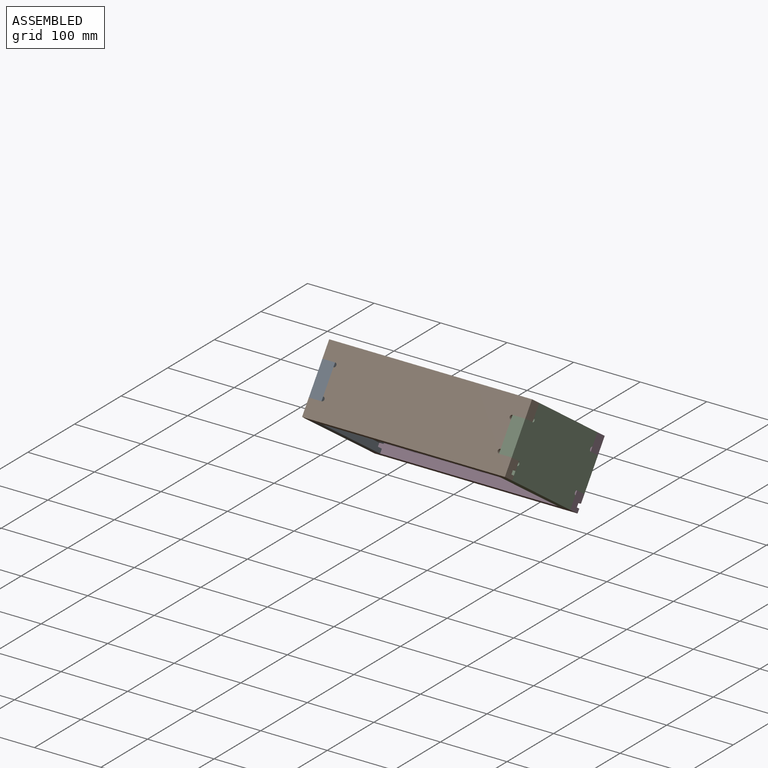
[diagram: assembled view]
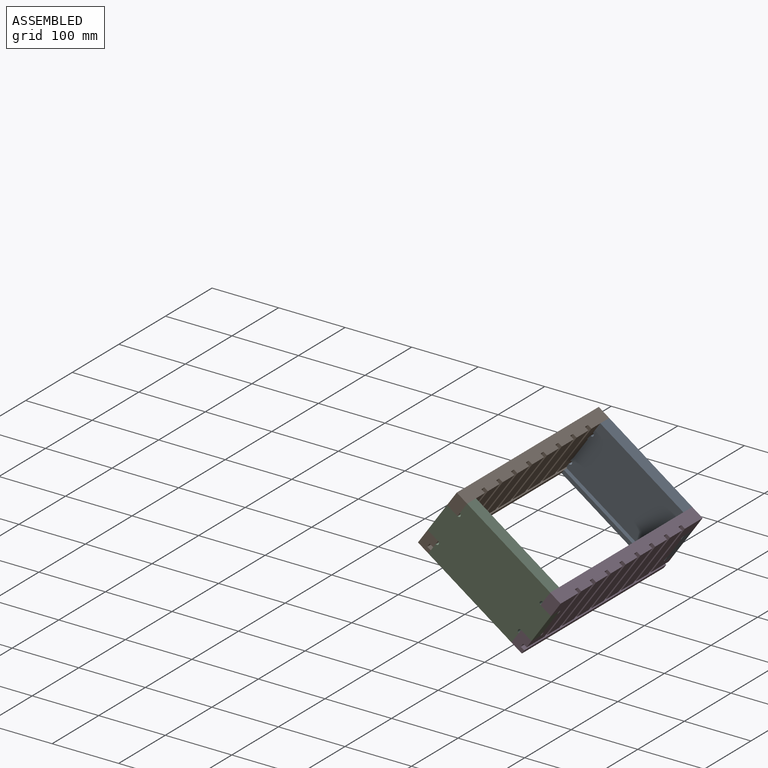
[diagram: assembled view, second angle]
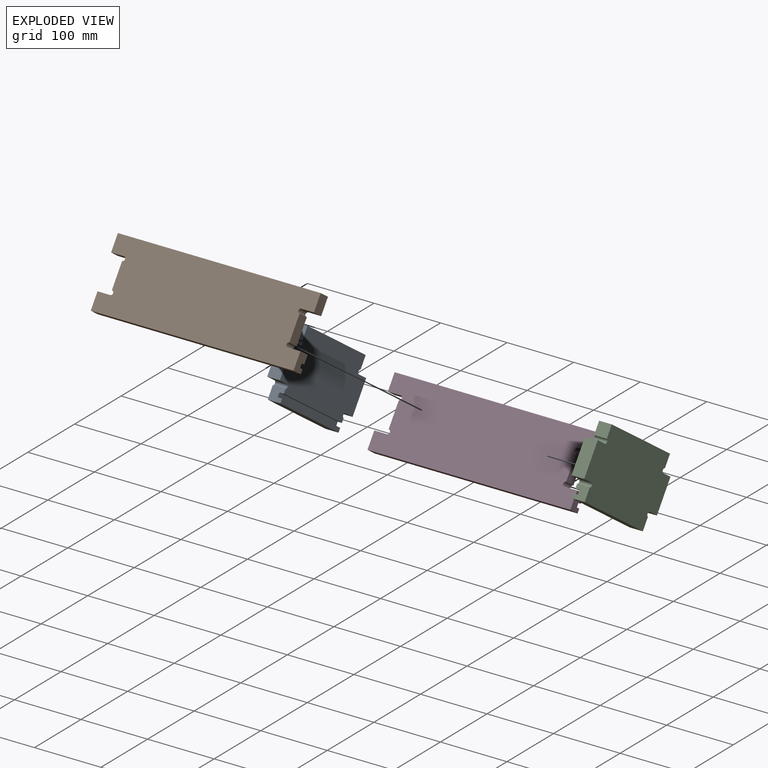
[diagram: exploded view]
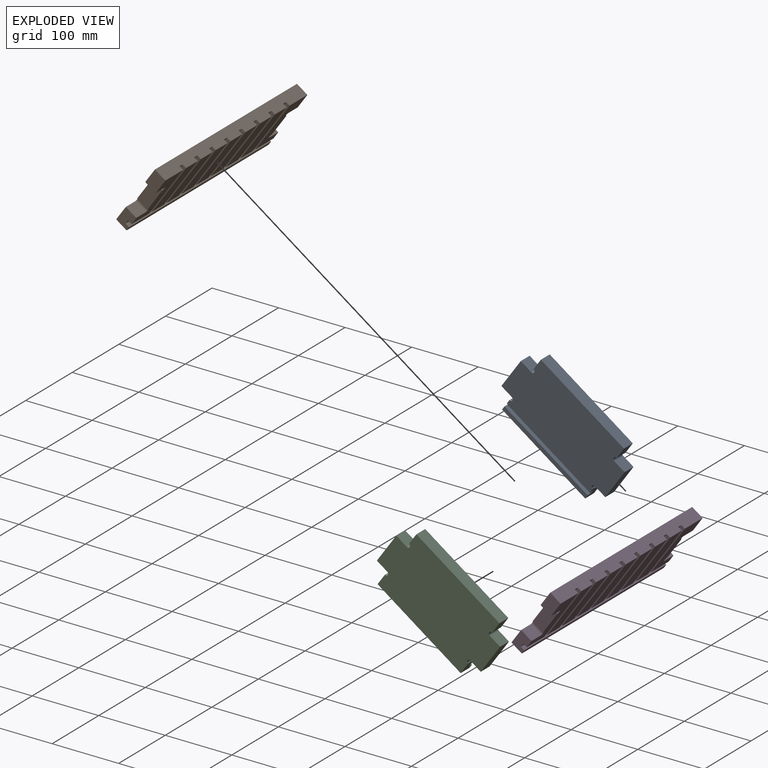
[diagram: exploded view, second angle]
ASSEMBLY  parts=4 mates=3
PART A: 22 faces, bbox 190.5x19.1x101.6 mm
  f0: plane 190.5x88.9mm, normal (0,-1,0), area 15420.5mm2, adj f1,f2,f3,f4,f5,f6,f8,f9
  f1: plane 19.05x19.05mm, normal (-1,0,0), area 322.6mm2, adj f0,f6,f7,f17,f18,f19,f20,f21
  f2: cylinder r=3.17mm len=19.05mm, axis (0,1,0), area 190mm2, adj f0,f3,f16,f18
  f3: plane 19.05x19.05mm, normal (0,0,1), area 362.9mm2, adj f0,f2,f4,f18
  f4: plane 50.8x19.05mm, normal (-1,0,0), area 967.7mm2, adj f0,f3,f5,f18
  f5: plane 19.05x19.05mm, normal (0,0,-1), area 362.9mm2, adj f0,f4,f6,f18
  f6: cylinder r=3.17mm len=19.05mm, axis (0,1,0), area 190mm2, adj f0,f1,f5,f18
  f7: plane 152.4x19.05mm, normal (0,0,-1), area 2903.2mm2, adj f1,f8,f17,f18
  f8: plane 19.05x19.05mm, normal (1,0,0), area 322.6mm2, adj f0,f7,f9,f17,f18,f19,f20,f21
  f9: cylinder r=3.17mm len=19.05mm, axis (0,1,0), area 190mm2, adj f0,f8,f10,f18
  f10: plane 19.05x19.05mm, normal (0,0,-1), area 362.9mm2, adj f0,f9,f11,f18
  f11: plane 50.8x19.05mm, normal (1,0,0), area 967.7mm2, adj f0,f10,f12,f18
  f12: plane 19.05x19.05mm, normal (0,0,1), area 362.9mm2, adj f0,f11,f13,f18
  f13: cylinder r=3.17mm len=19.05mm, axis (0,1,0), area 190mm2, adj f0,f12,f14,f18
  f14: plane 19.05x19.05mm, normal (1,0,0), area 362.9mm2, adj f0,f13,f15,f18
  f15: plane 152.4x19.05mm, normal (0,0,1), area 2903.2mm2, adj f0,f14,f16,f18
  f16: plane 19.05x19.05mm, normal (-1,0,0), area 362.9mm2, adj f0,f2,f15,f18
  f17: plane 152.4x6.35mm, normal (0,-1,0), area 967.7mm2, adj f1,f7,f8,f19
  f18: plane 190.5x101.6mm, normal (0,1,0), area 17356mm2, adj f1,f2,f3,f4,f5,f6,f7,f8
  f19: plane 152.4x6.35mm, normal (0,0,1), area 967.7mm2, adj f1,f8,f17,f21
  f20: plane 152.4x6.35mm, normal (0,0,-1), area 967.7mm2, adj f0,f1,f8,f21
  f21: plane 152.4x6.35mm, normal (0,-1,0), area 967.7mm2, adj f1,f8,f19,f20
PART B: 54 faces, bbox 304.8x19.1x101.6 mm
  f0: plane 88.9x38.1mm, normal (0,1,0), area 2387.7mm2, adj f10,f11,f12,f20,f21,f22,f23,f24
  f1: plane 88.9x25.4mm, normal (0,1,0), area 2258.1mm2, adj f10,f27,f30,f44
  f2: plane 88.9x25.4mm, normal (0,1,0), area 2258.1mm2, adj f10,f29,f32,f45
  f3: plane 88.9x25.4mm, normal (0,1,0), area 2258.1mm2, adj f10,f31,f34,f46
  f4: plane 88.9x25.4mm, normal (0,1,0), area 2258.1mm2, adj f10,f33,f36,f47
  f5: plane 88.9x25.4mm, normal (0,1,0), area 2258.1mm2, adj f10,f35,f38,f48
  f6: plane 88.9x25.4mm, normal (0,1,0), area 2258.1mm2, adj f10,f37,f40,f49
  f7: plane 88.9x25.4mm, normal (0,1,0), area 2258.1mm2, adj f10,f39,f43,f50
  f8: plane 304.8x6.35mm, normal (0,1,0), area 1935.5mm2, adj f9,f19,f20,f53
  f9: plane 25.4x19.05mm, normal (-1,0,0), area 443.5mm2, adj f8,f18,f19,f25,f26,f42,f51,f53
  f10: plane 304.8x19.05mm, normal (0,0,1), area 5483.9mm2, adj f0,f1,f2,f3,f4,f5,f6,f7
  f11: plane 19.05x19.05mm, normal (0,0,-1), area 362.9mm2, adj f0,f12,f24,f25
  f12: plane 25.4x19.05mm, normal (1,0,0), area 483.9mm2, adj f0,f10,f11,f25
  f13: plane 25.4x19.05mm, normal (-1,0,0), area 483.9mm2, adj f10,f14,f25,f26
  f14: plane 19.05x19.05mm, normal (0,0,-1), area 362.9mm2, adj f13,f15,f25,f26
  f15: cylinder r=3.17mm len=19.05mm, axis (0,1,0), area 190mm2, adj f14,f16,f25,f26
  f16: plane 38.1x19.05mm, normal (-1,0,0), area 725.8mm2, adj f15,f17,f25,f26
  f17: cylinder r=3.17mm len=19.05mm, axis (0,1,0), area 190mm2, adj f16,f18,f25,f26
  f18: plane 19.05x19.05mm, normal (0,0,1), area 362.9mm2, adj f9,f17,f25,f26
  f19: plane 304.8x19.05mm, normal (0,0,-1), area 5806.4mm2, adj f8,f9,f20,f25
  f20: plane 25.4x19.05mm, normal (1,0,0), area 443.5mm2, adj f0,f8,f19,f21,f25,f42,f52,f53
  f21: plane 19.05x19.05mm, normal (0,0,1), area 362.9mm2, adj f0,f20,f22,f25
  f22: cylinder r=3.17mm len=19.05mm, axis (0,1,0), area 190mm2, adj f0,f21,f23,f25
  f23: plane 38.1x19.05mm, normal (1,0,0), area 725.8mm2, adj f0,f22,f24,f25
  f24: cylinder r=3.17mm len=19.05mm, axis (0,1,0), area 190mm2, adj f0,f11,f23,f25
  f25: plane 304.8x101.6mm, normal (0,-1,0), area 28968.9mm2, adj f9,f10,f11,f12,f13,f14,f15,f16
  f26: plane 88.9x38.1mm, normal (0,1,0), area 2387.7mm2, adj f9,f10,f13,f14,f15,f16,f17,f18
  f27: plane 88.9x6.35mm, normal (1,0,0), area 564.5mm2, adj f1,f10,f42,f44
  f28: plane 88.9x6.35mm, normal (-1,0,0), area 564.5mm2, adj f0,f10,f42,f52
  f29: plane 88.9x6.35mm, normal (1,0,0), area 564.5mm2, adj f2,f10,f42,f45
  f30: plane 88.9x6.35mm, normal (-1,0,0), area 564.5mm2, adj f1,f10,f42,f44
  f31: plane 88.9x6.35mm, normal (1,0,0), area 564.5mm2, adj f3,f10,f42,f46
  f32: plane 88.9x6.35mm, normal (-1,0,0), area 564.5mm2, adj f2,f10,f42,f45
  f33: plane 88.9x6.35mm, normal (1,0,0), area 564.5mm2, adj f4,f10,f42,f47
  f34: plane 88.9x6.35mm, normal (-1,0,0), area 564.5mm2, adj f3,f10,f42,f46
  f35: plane 88.9x6.35mm, normal (1,0,0), area 564.5mm2, adj f5,f10,f42,f48
  f36: plane 88.9x6.35mm, normal (-1,0,0), area 564.5mm2, adj f4,f10,f42,f47
  f37: plane 88.9x6.35mm, normal (1,0,0), area 564.5mm2, adj f6,f10,f42,f49
  f38: plane 88.9x6.35mm, normal (-1,0,0), area 564.5mm2, adj f5,f10,f42,f48
  f39: plane 88.9x6.35mm, normal (1,0,0), area 564.5mm2, adj f7,f10,f42,f50
  f40: plane 88.9x6.35mm, normal (-1,0,0), area 564.5mm2, adj f6,f10,f42,f49
  f41: plane 88.9x6.35mm, normal (1,0,0), area 564.5mm2, adj f10,f26,f42,f51
  f42: plane 304.8x95.25mm, normal (0,1,0), area 6451.6mm2, adj f9,f10,f20,f27,f28,f29,f30,f31
  f43: plane 88.9x6.35mm, normal (-1,0,0), area 564.5mm2, adj f7,f10,f42,f50
  f44: plane 25.4x6.35mm, normal (0,0,-1), area 161.3mm2, adj f1,f27,f30,f42
  f45: plane 25.4x6.35mm, normal (0,0,-1), area 161.3mm2, adj f2,f29,f32,f42
  f46: plane 25.4x6.35mm, normal (0,0,-1), area 161.3mm2, adj f3,f31,f34,f42
  f47: plane 25.4x6.35mm, normal (0,0,-1), area 161.3mm2, adj f4,f33,f36,f42
  f48: plane 25.4x6.35mm, normal (0,0,-1), area 161.3mm2, adj f5,f35,f38,f42
  f49: plane 25.4x6.35mm, normal (0,0,-1), area 161.3mm2, adj f6,f37,f40,f42
  f50: plane 25.4x6.35mm, normal (0,0,-1), area 161.3mm2, adj f7,f39,f42,f43
  f51: plane 38.1x6.35mm, normal (0,0,-1), area 241.9mm2, adj f9,f26,f41,f42
  f52: plane 38.1x6.35mm, normal (0,0,-1), area 241.9mm2, adj f0,f20,f28,f42
  f53: plane 304.8x6.35mm, normal (0,0,1), area 1935.5mm2, adj f8,f9,f20,f42
PART C: same geometry as A
PART D: same geometry as B
PLACE A rot(axis=(-0.29,0.29,0.91),95.2deg) t=(59.63,181.97,-12.94)mm
PLACE B rot(axis=(-1,0,0),35deg) t=(212.03,119.55,30.77)mm
PLACE C rot(axis=(-0.29,-0.29,-0.91),95.2deg) t=(364.43,181.97,-12.94)mm
PLACE D rot(axis=(-1,0,0),35deg) t=(212.03,260,-67.57)mm
MATE fastened A.f0 <-> D.f16  axis (1,0,0) through (78.68,260,-67.57)mm
MATE fastened A.f4 <-> B.f25  axis (0,-0.82,0.57) through (78.68,103.95,41.7)mm
MATE fastened C.f0 <-> B.f23  axis (-1,0,0) through (345.38,103.95,41.7)mm
